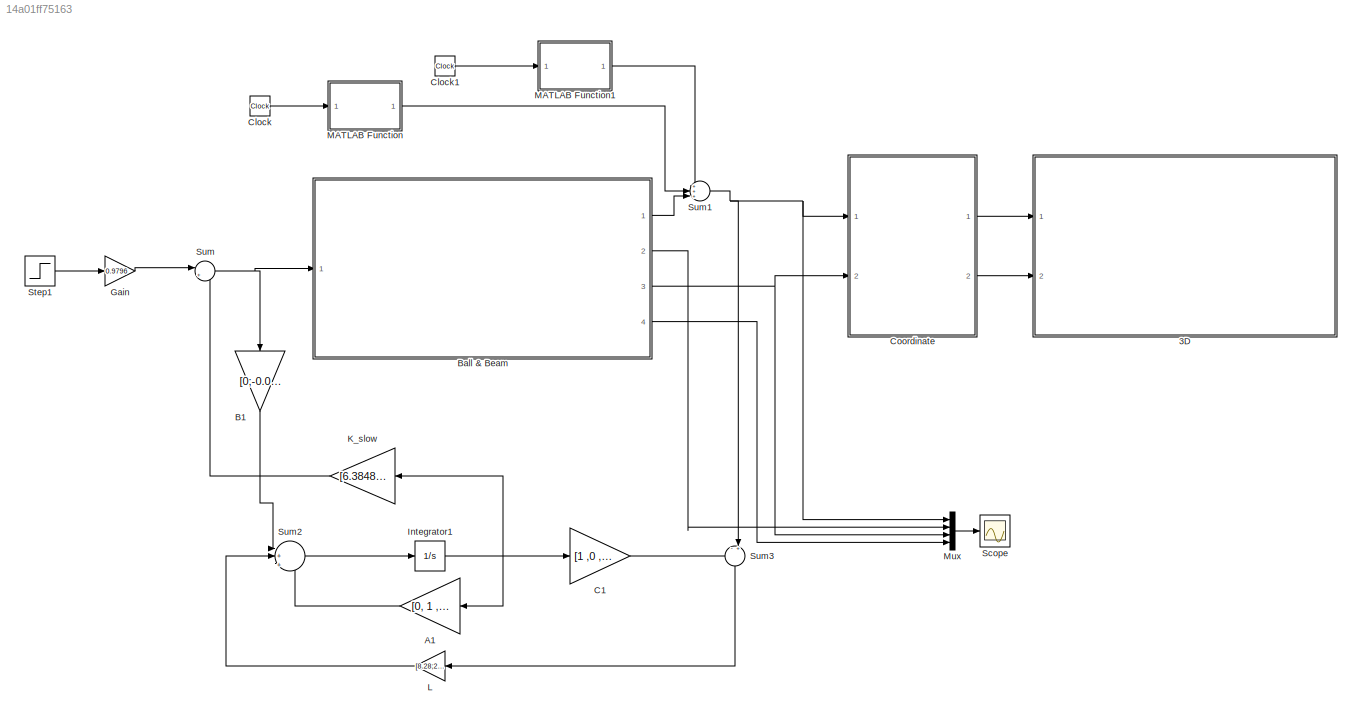
MODEL slx_14a01ff75163
KIND model
CONFIG AbsTol = auto
CONFIG EnableMultiTasking = off
CONFIG FixedStep = auto
CONFIG MaxStep = auto
CONFIG MinStep = auto
CONFIG PreLoadFcn = m = 0.27;\nIb = 4.32e-5;\nr = 0.02;\nb = 1;\ng = 9.81;\nIw = 1.5 * 9.35e-2;\nK = 0.001;\nl = 0.49;
CONFIG RelTol = 1e-3
CONFIG SampleTimeConstraint = Unconstrained
CONFIG Solver = VariableStepAuto
CONFIG SolverName = VariableStepAuto
CONFIG StartTime = 0.0
CONFIG StopTime = 50
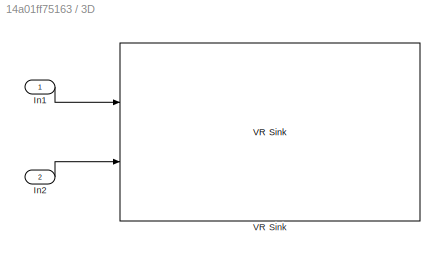
BLOCK [SubSystem] 3D
  Permissions = NoReadOrWrite
  Ports = [2]
  RequestExecContextInheritance = off
BLOCK [Inport] 3D/In1
  IconDisplay = Port number
BLOCK [Inport] 3D/In2
  IconDisplay = Port number
  Port = 2
BLOCK [Reference] 3D/VR Sink  REF=vrlib/VR Sink
  InstantiateOnLoad = on
  Ports = [2]
  SourceBlock = vrlib/VR Sink
  SourceProductBaseCode = SL
  SourceProductName = Simulink
  SourceType = Virtual Reality Sink
BLOCK [Gain] A1
  Gain = [0, 1 ,0, 0 ;-0.378 ,0 ,7.0147 ,0.0343;0, 0, 0, 1; 18.9001 ,0, -0.3797, -1.7133]
  Multiplication = Matrix(K*u) (u vector)
  OutDataTypeStr = Inherit: Inherit via internal rule
  ParamDataTypeStr = Inherit: Inherit via internal rule
  SaturateOnIntegerOverflow = off
BLOCK [Gain] B1
  Gain = [0;-0.0699;0;3.4965]
  Multiplication = Matrix(K*u) (u vector)
  OutDataTypeStr = Inherit: Inherit via internal rule
  ParamDataTypeStr = Inherit: Inherit via internal rule
  SaturateOnIntegerOverflow = off
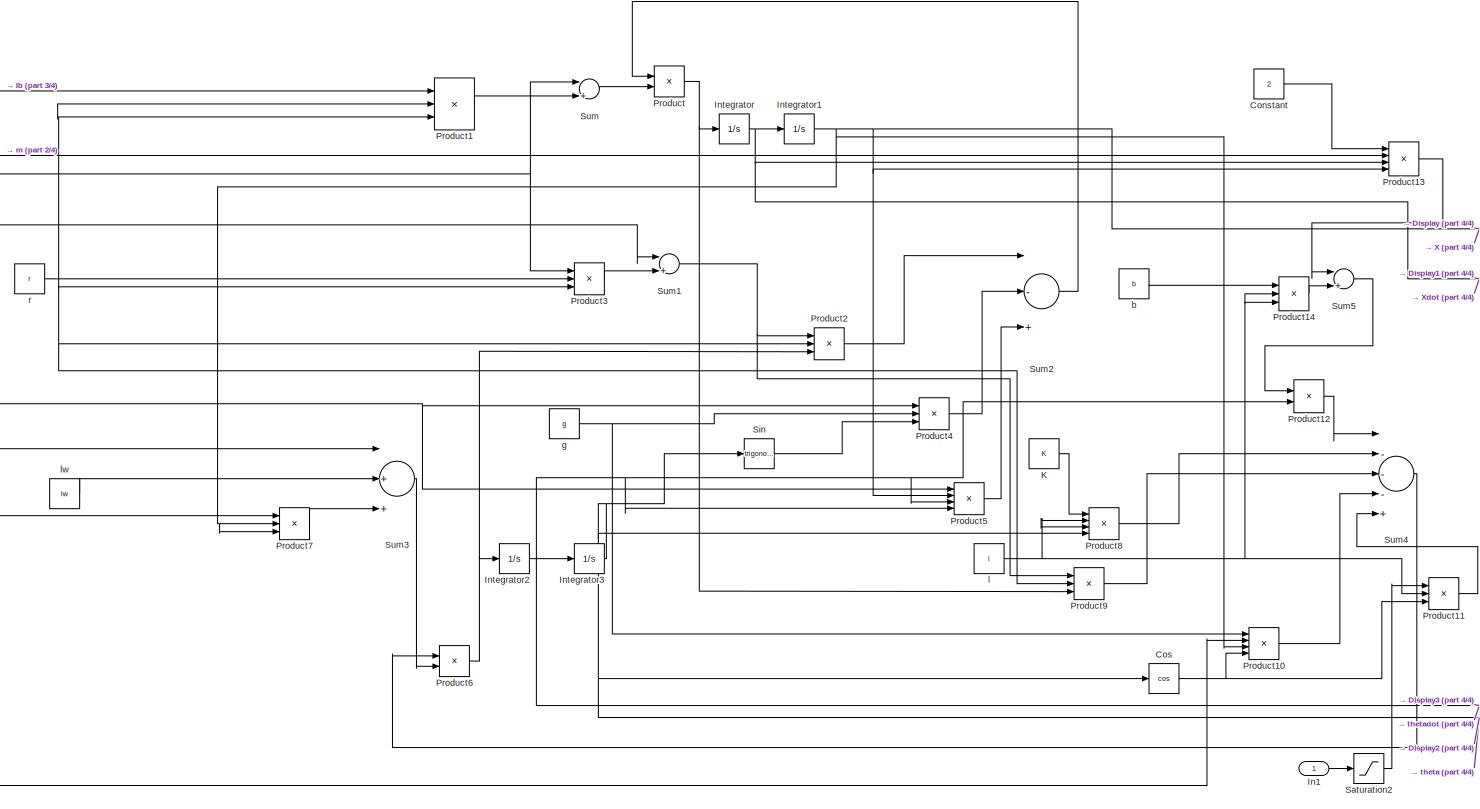
[diagram: Ball & Beam - part 1/4, most of the canvas]
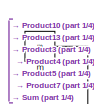
[diagram: Ball & Beam - part 2/4, top left region]
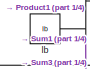
[diagram: Ball & Beam - part 3/4, top left region]
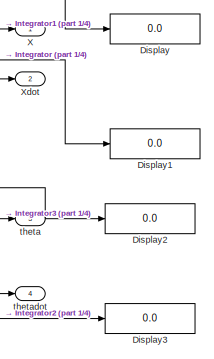
[diagram: Ball & Beam - part 4/4, middle right region]
BLOCK [SubSystem] Ball & Beam
  Permissions = NoReadOrWrite
  Ports = [1, 4]
  RequestExecContextInheritance = off
BLOCK [Constant] Ball & Beam/Constant
  Value = 2
BLOCK [Trigonometry] Ball & Beam/Cos
  Operator = cos
  Ports = [1, 1]
BLOCK [Display] Ball & Beam/Display
  Decimation = 1
  Ports = [1]
BLOCK [Display] Ball & Beam/Display1
  Decimation = 1
  Ports = [1]
BLOCK [Display] Ball & Beam/Display2
  Decimation = 1
  Ports = [1]
BLOCK [Display] Ball & Beam/Display3
  Decimation = 1
  Ports = [1]
BLOCK [Inport] Ball & Beam/In1
  IconDisplay = Port number
BLOCK [Integrator] Ball & Beam/Integrator
  Ports = [1, 1]
BLOCK [Integrator] Ball & Beam/Integrator1
  Ports = [1, 1]
BLOCK [Integrator] Ball & Beam/Integrator2
  Ports = [1, 1]
BLOCK [Integrator] Ball & Beam/Integrator3
  Ports = [1, 1]
BLOCK [Constant] Ball & Beam/K
  Value = K
BLOCK [Product] Ball & Beam/Product
  InputSameDT = off
  Inputs = */
  OutDataTypeStr = Inherit: Inherit via internal rule
  Ports = [2, 1]
  RndMeth = Floor
  SaturateOnIntegerOverflow = off
BLOCK [Product] Ball & Beam/Product1
  InputSameDT = off
  Inputs = *//
  OutDataTypeStr = Inherit: Inherit via internal rule
  Ports = [3, 1]
  RndMeth = Floor
  SaturateOnIntegerOverflow = off
BLOCK [Product] Ball & Beam/Product10
  InputSameDT = off
  Inputs = ****
  OutDataTypeStr = Inherit: Inherit via internal rule
  Ports = [4, 1]
  RndMeth = Floor
  SaturateOnIntegerOverflow = off
BLOCK [Product] Ball & Beam/Product11
  InputSameDT = off
  Inputs = ***
  OutDataTypeStr = Inherit: Inherit via internal rule
  Ports = [3, 1]
  RndMeth = Floor
  SaturateOnIntegerOverflow = off
BLOCK [Product] Ball & Beam/Product12
  InputSameDT = off
  Inputs = **
  OutDataTypeStr = Inherit: Inherit via internal rule
  Ports = [2, 1]
  RndMeth = Floor
  SaturateOnIntegerOverflow = off
BLOCK [Product] Ball & Beam/Product13
  InputSameDT = off
  Inputs = ****
  OutDataTypeStr = Inherit: Inherit via internal rule
  Ports = [4, 1]
  RndMeth = Floor
  SaturateOnIntegerOverflow = off
BLOCK [Product] Ball & Beam/Product14
  InputSameDT = off
  Inputs = ***
  OutDataTypeStr = Inherit: Inherit via internal rule
  Ports = [3, 1]
  RndMeth = Floor
  SaturateOnIntegerOverflow = off
BLOCK [Product] Ball & Beam/Product2
  InputSameDT = off
  Inputs = */*
  OutDataTypeStr = Inherit: Inherit via internal rule
  Ports = [3, 1]
  RndMeth = Floor
  SaturateOnIntegerOverflow = off
BLOCK [Product] Ball & Beam/Product3
  InputSameDT = off
  Inputs = ***
  OutDataTypeStr = Inherit: Inherit via internal rule
  Ports = [3, 1]
  RndMeth = Floor
  SaturateOnIntegerOverflow = off
BLOCK [Product] Ball & Beam/Product4
  InputSameDT = off
  Inputs = ***
  OutDataTypeStr = Inherit: Inherit via internal rule
  Ports = [3, 1]
  RndMeth = Floor
  SaturateOnIntegerOverflow = off
BLOCK [Product] Ball & Beam/Product5
  InputSameDT = off
  Inputs = ****
  OutDataTypeStr = Inherit: Inherit via internal rule
  Ports = [4, 1]
  RndMeth = Floor
  SaturateOnIntegerOverflow = off
BLOCK [Product] Ball & Beam/Product6
  InputSameDT = off
  Inputs = */
  OutDataTypeStr = Inherit: Inherit via internal rule
  Ports = [2, 1]
  RndMeth = Floor
  SaturateOnIntegerOverflow = off
BLOCK [Product] Ball & Beam/Product7
  InputSameDT = off
  Inputs = ***
  OutDataTypeStr = Inherit: Inherit via internal rule
  Ports = [3, 1]
  RndMeth = Floor
  SaturateOnIntegerOverflow = off
BLOCK [Product] Ball & Beam/Product8
  InputSameDT = off
  Inputs = ****
  OutDataTypeStr = Inherit: Inherit via internal rule
  Ports = [4, 1]
  RndMeth = Floor
  SaturateOnIntegerOverflow = off
BLOCK [Product] Ball & Beam/Product9
  InputSameDT = off
  Inputs = */*
  OutDataTypeStr = Inherit: Inherit via internal rule
  Ports = [3, 1]
  RndMeth = Floor
  SaturateOnIntegerOverflow = off
BLOCK [Saturate] Ball & Beam/Saturation2
  InputPortMap = u0
  LowerLimit = -5
  Ports = [1, 1]
  UpperLimit = 5
BLOCK [Trigonometry] Ball & Beam/Sin
  Ports = [1, 1]
BLOCK [Sum] Ball & Beam/Sum
  InputSameDT = off
  Inputs = |++
  OutDataTypeStr = Inherit: Inherit via internal rule
  Ports = [2, 1]
  SaturateOnIntegerOverflow = off
BLOCK [Sum] Ball & Beam/Sum1
  InputSameDT = off
  Inputs = |++
  OutDataTypeStr = Inherit: Inherit via internal rule
  Ports = [2, 1]
  SaturateOnIntegerOverflow = off
BLOCK [Sum] Ball & Beam/Sum2
  InputSameDT = off
  Inputs = |-++
  OutDataTypeStr = Inherit: Inherit via internal rule
  Ports = [3, 1]
  SaturateOnIntegerOverflow = off
BLOCK [Sum] Ball & Beam/Sum3
  InputSameDT = off
  Inputs = |+++
  OutDataTypeStr = Inherit: Inherit via internal rule
  Ports = [3, 1]
  SaturateOnIntegerOverflow = off
BLOCK [Sum] Ball & Beam/Sum4
  InputSameDT = off
  Inputs = |---++
  OutDataTypeStr = Inherit: Inherit via internal rule
  Ports = [5, 1]
  SaturateOnIntegerOverflow = off
BLOCK [Sum] Ball & Beam/Sum5
  InputSameDT = off
  Inputs = |++
  OutDataTypeStr = Inherit: Inherit via internal rule
  Ports = [2, 1]
  SaturateOnIntegerOverflow = off
BLOCK [Outport] Ball & Beam/X
  IconDisplay = Port number
  VectorParamsAs1DForOutWhenUnconnected = on
BLOCK [Outport] Ball & Beam/Xdot
  IconDisplay = Port number
  Port = 2
  VectorParamsAs1DForOutWhenUnconnected = on
BLOCK [Constant] Ball & Beam/b
  Value = b
BLOCK [Constant] Ball & Beam/g
  Value = g
BLOCK [Constant] Ball & Beam/l
  Value = l
BLOCK [Constant] Ball & Beam/lb
  Value = Ib
BLOCK [Constant] Ball & Beam/lw
  Value = Iw
BLOCK [Constant] Ball & Beam/m
  Value = m
BLOCK [Constant] Ball & Beam/r
  Value = r
BLOCK [Outport] Ball & Beam/theta
  IconDisplay = Port number
  Port = 3
  VectorParamsAs1DForOutWhenUnconnected = on
BLOCK [Outport] Ball & Beam/thetadot
  IconDisplay = Port number
  Port = 4
  VectorParamsAs1DForOutWhenUnconnected = on
BLOCK [Gain] C1
  Gain = [1 ,0 ,0 ,0]
  Multiplication = Matrix(K*u) (u vector)
  OutDataTypeStr = Inherit: Inherit via internal rule
  ParamDataTypeStr = Inherit: Inherit via internal rule
  SaturateOnIntegerOverflow = off
BLOCK [Clock] Clock
BLOCK [Clock] Clock1
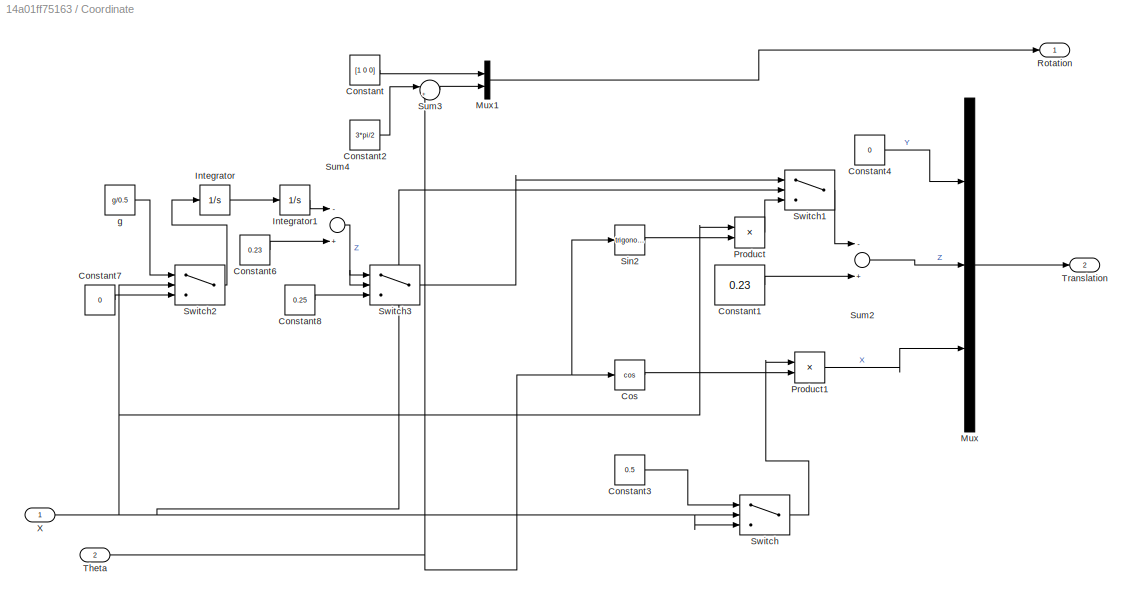
BLOCK [SubSystem] Coordinate
  Permissions = NoReadOrWrite
  Ports = [2, 2]
  RequestExecContextInheritance = off
BLOCK [Constant] Coordinate/Constant
  Value = [1 0 0]
BLOCK [Constant] Coordinate/Constant1
  Value = 0.23
BLOCK [Constant] Coordinate/Constant2
  Value = 3*pi/2
BLOCK [Constant] Coordinate/Constant3
  Value = 0.5
BLOCK [Constant] Coordinate/Constant4
  Value = 0
BLOCK [Constant] Coordinate/Constant6
  Value = 0.23
BLOCK [Constant] Coordinate/Constant7
  Value = 0
BLOCK [Constant] Coordinate/Constant8
  Value = 0.25
BLOCK [Trigonometry] Coordinate/Cos
  Operator = cos
  Ports = [1, 1]
BLOCK [Integrator] Coordinate/Integrator
  Ports = [1, 1]
BLOCK [Integrator] Coordinate/Integrator1
  Ports = [1, 1]
BLOCK [Mux] Coordinate/Mux
  DisplayOption = bar
  Inputs = 3
  Ports = [3, 1]
BLOCK [Mux] Coordinate/Mux1
  DisplayOption = bar
  Inputs = 2
  Ports = [2, 1]
BLOCK [Product] Coordinate/Product
  InputSameDT = off
  OutDataTypeStr = Inherit: Inherit via internal rule
  Ports = [2, 1]
  RndMeth = Floor
  SaturateOnIntegerOverflow = off
BLOCK [Product] Coordinate/Product1
  InputSameDT = off
  OutDataTypeStr = Inherit: Inherit via internal rule
  Ports = [2, 1]
  RndMeth = Floor
  SaturateOnIntegerOverflow = off
BLOCK [Outport] Coordinate/Rotation
  IconDisplay = Port number
  VectorParamsAs1DForOutWhenUnconnected = on
BLOCK [Trigonometry] Coordinate/Sin2
  Ports = [1, 1]
BLOCK [Sum] Coordinate/Sum2
  InputSameDT = off
  Inputs = -+
  OutDataTypeStr = Inherit: Inherit via internal rule
  Ports = [2, 1]
  SaturateOnIntegerOverflow = off
BLOCK [Sum] Coordinate/Sum3
  IconShape = round
  InputSameDT = off
  Inputs = |++
  OutDataTypeStr = Inherit: Inherit via internal rule
  Ports = [2, 1]
  SaturateOnIntegerOverflow = off
BLOCK [Sum] Coordinate/Sum4
  InputSameDT = off
  Inputs = -+
  OutDataTypeStr = Inherit: Inherit via internal rule
  Ports = [2, 1]
  SaturateOnIntegerOverflow = off
BLOCK [Switch] Coordinate/Switch
  Criteria = u2 > Threshold
  InputSameDT = off
  SaturateOnIntegerOverflow = off
  Threshold = 0.5
BLOCK [Switch] Coordinate/Switch1
  Criteria = u2 > Threshold
  InputSameDT = off
  SaturateOnIntegerOverflow = off
  Threshold = 0.5
BLOCK [Switch] Coordinate/Switch2
  Criteria = u2 > Threshold
  InputSameDT = off
  SaturateOnIntegerOverflow = off
  Threshold = 0.5
BLOCK [Switch] Coordinate/Switch3
  Criteria = u2 > Threshold
  InputSameDT = off
  SaturateOnIntegerOverflow = off
  Threshold = 0.02
BLOCK [Inport] Coordinate/Theta
  IconDisplay = Port number
  Port = 2
BLOCK [Outport] Coordinate/Translation
  IconDisplay = Port number
  Port = 2
  VectorParamsAs1DForOutWhenUnconnected = on
BLOCK [Inport] Coordinate/X
  IconDisplay = Port number
BLOCK [Constant] Coordinate/g
  Value = g/0.5
BLOCK [Gain] Gain
  Gain = 0.9796
  OutDataTypeStr = Inherit: Inherit via internal rule
  ParamDataTypeStr = Inherit: Inherit via internal rule
  SaturateOnIntegerOverflow = off
BLOCK [Integrator] Integrator1
  Ports = [1, 1]
BLOCK [Gain] K_slow
  Gain = [6.3848, 2.0407, 9.9208, 2.4108]
  Multiplication = Matrix(K*u) (u vector)
  OutDataTypeStr = Inherit: Inherit via internal rule
  ParamDataTypeStr = Inherit: Inherit via internal rule
  SaturateOnIntegerOverflow = off
BLOCK [Gain] L
  Gain = [8.28;20.0447;1.69;18.31]
  OutDataTypeStr = Inherit: Inherit via internal rule
  ParamDataTypeStr = Inherit: Inherit via internal rule
  SaturateOnIntegerOverflow = off
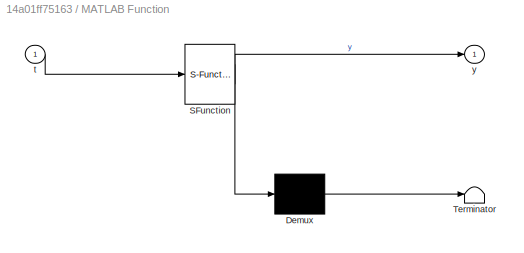
BLOCK [SubSystem] MATLAB Function
  ErrorFcn = Stateflow.Translate.translate
  PermitHierarchicalResolution = ExplicitOnly
  Ports = [1, 1]
  RequestExecContextInheritance = off
  SFBlockType = MATLAB Function
  TreatAsAtomicUnit = on
BLOCK [Demux] MATLAB Function/ Demux 
  Outputs = 1
  Ports = [1, 1]
BLOCK [S-Function] MATLAB Function/ SFunction 
  EnableBusSupport = on
  FunctionName = sf_sfun
  PortCounts = [1 2]
  Ports = [1, 2]
  SFcnIsStateOwnerBlock = off
  SFunctionDeploymentMode = off
  Tag = Stateflow S-Function ballandbeam 2
BLOCK [Terminator] MATLAB Function/ Terminator 
BLOCK [Inport] MATLAB Function/t
  IconDisplay = Port number
BLOCK [Outport] MATLAB Function/y
  IconDisplay = Port number
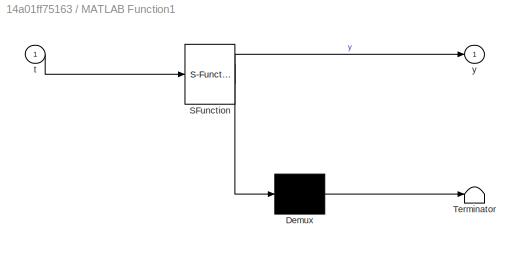
BLOCK [SubSystem] MATLAB Function1
  ErrorFcn = Stateflow.Translate.translate
  PermitHierarchicalResolution = ExplicitOnly
  Ports = [1, 1]
  RequestExecContextInheritance = off
  SFBlockType = MATLAB Function
  TreatAsAtomicUnit = on
BLOCK [Demux] MATLAB Function1/ Demux 
  Outputs = 1
  Ports = [1, 1]
BLOCK [S-Function] MATLAB Function1/ SFunction 
  EnableBusSupport = on
  FunctionName = sf_sfun
  PortCounts = [1 2]
  Ports = [1, 2]
  SFcnIsStateOwnerBlock = off
  SFunctionDeploymentMode = off
  Tag = Stateflow S-Function ballandbeam 1
BLOCK [Terminator] MATLAB Function1/ Terminator 
BLOCK [Inport] MATLAB Function1/t
  IconDisplay = Port number
BLOCK [Outport] MATLAB Function1/y
  IconDisplay = Port number
BLOCK [Mux] Mux
  DisplayOption = bar
  Ports = [4, 1]
BLOCK [Scope] Scope
  Floating = off
  NumInputPorts = 1
  Ports = [1]
  ScopeSpecificationString = Simulink.scopes.TimeScopeBlockCfg('CurrentConfiguration', extmgr.ConfigurationSet(extmgr.Configuration('Core','General UI',true),extmgr.Configuration('Core','Source UI',true),extmgr.Configuration('Sources','WiredSimulink',true),extmgr.Configuration('Visuals','Time Domain',true,'SerializedDisplays',{struct('MinYLimReal','-0.44364','MaxYLimReal','0.60762','YLabelReal','','MinYLimMag','0.00000','MaxY...<+1405ch>
BLOCK [Step] Step1
  After = 0.1
  SampleTime = 0
  Time = 0
BLOCK [Sum] Sum
  IconShape = round
  InputSameDT = off
  Inputs = |+-
  OutDataTypeStr = Inherit: Inherit via internal rule
  Ports = [2, 1]
  SaturateOnIntegerOverflow = off
BLOCK [Sum] Sum1
  IconShape = round
  InputSameDT = off
  Inputs = +++|
  OutDataTypeStr = Inherit: Inherit via internal rule
  Ports = [3, 1]
  SaturateOnIntegerOverflow = off
BLOCK [Sum] Sum2
  IconShape = round
  InputSameDT = off
  Inputs = |+|+|+
  OutDataTypeStr = Inherit: Inherit via internal rule
  Ports = [3, 1]
  SaturateOnIntegerOverflow = off
BLOCK [Sum] Sum3
  IconShape = round
  InputSameDT = off
  Inputs = -+|
  OutDataTypeStr = Inherit: Inherit via internal rule
  Ports = [2, 1]
  SaturateOnIntegerOverflow = off
LINE 3D/In1:1 -> 3D/VR Sink:1
LINE 3D/In2:1 -> 3D/VR Sink:2
LINE A1:1 -> Sum2:3
LINE B1:1 -> Sum2:1
LINE Ball & Beam/Constant:1 -> Ball & Beam/Product13:1
NET Ball & Beam/Cos:1 -> Ball & Beam/Product10:4, Ball & Beam/Product11:3
LINE Ball & Beam/In1:1 -> Ball & Beam/Saturation2:1
NET Ball & Beam/Integrator1:1 -> Ball & Beam/Display:1, Ball & Beam/Product10:3, Ball & Beam/Product13:4, Ball & Beam/Product5:2, Ball & Beam/Product7:2, Ball & Beam/Product7:3, Ball & Beam/X:1
NET Ball & Beam/Integrator2:1 -> Ball & Beam/Display3:1, Ball & Beam/Integrator3:1, Ball & Beam/Product12:2, Ball & Beam/Product5:3, Ball & Beam/Product5:4, Ball & Beam/thetadot:1
NET Ball & Beam/Integrator3:1 -> Ball & Beam/Cos:1, Ball & Beam/Display2:1, Ball & Beam/Product8:4, Ball & Beam/Sin:1, Ball & Beam/theta:1
NET Ball & Beam/Integrator:1 -> Ball & Beam/Display1:1, Ball & Beam/Integrator1:1, Ball & Beam/Product13:3, Ball & Beam/Xdot:1
LINE Ball & Beam/K:1 -> Ball & Beam/Product8:1
LINE Ball & Beam/Product10:1 -> Ball & Beam/Sum4:4
LINE Ball & Beam/Product11:1 -> Ball & Beam/Sum4:5
LINE Ball & Beam/Product12:1 -> Ball & Beam/Sum4:1
LINE Ball & Beam/Product13:1 -> Ball & Beam/Sum5:1
LINE Ball & Beam/Product14:1 -> Ball & Beam/Sum5:2
LINE Ball & Beam/Product1:1 -> Ball & Beam/Sum:2
LINE Ball & Beam/Product2:1 -> Ball & Beam/Sum2:1
LINE Ball & Beam/Product3:1 -> Ball & Beam/Sum1:2
LINE Ball & Beam/Product4:1 -> Ball & Beam/Sum2:2
LINE Ball & Beam/Product5:1 -> Ball & Beam/Sum2:3
NET Ball & Beam/Product6:1 -> Ball & Beam/Integrator2:1, Ball & Beam/Product2:3
LINE Ball & Beam/Product7:1 -> Ball & Beam/Sum3:3
LINE Ball & Beam/Product8:1 -> Ball & Beam/Sum4:2
LINE Ball & Beam/Product9:1 -> Ball & Beam/Sum4:3
NET Ball & Beam/Product:1 -> Ball & Beam/Integrator:1, Ball & Beam/Product9:3
LINE Ball & Beam/Saturation2:1 -> Ball & Beam/Product11:1
LINE Ball & Beam/Sin:1 -> Ball & Beam/Product4:3
NET Ball & Beam/Sum1:1 -> Ball & Beam/Product2:1, Ball & Beam/Product9:1
LINE Ball & Beam/Sum2:1 -> Ball & Beam/Product:1
LINE Ball & Beam/Sum3:1 -> Ball & Beam/Product6:2
LINE Ball & Beam/Sum4:1 -> Ball & Beam/Product6:1
LINE Ball & Beam/Sum5:1 -> Ball & Beam/Product12:1
LINE Ball & Beam/Sum:1 -> Ball & Beam/Product:2
LINE Ball & Beam/b:1 -> Ball & Beam/Product14:1
NET Ball & Beam/g:1 -> Ball & Beam/Product10:1, Ball & Beam/Product4:2
NET Ball & Beam/l:1 -> Ball & Beam/Product11:2, Ball & Beam/Product14:2, Ball & Beam/Product14:3, Ball & Beam/Product8:2, Ball & Beam/Product8:3
NET Ball & Beam/lb:1 -> Ball & Beam/Product1:1, Ball & Beam/Sum1:1, Ball & Beam/Sum3:1
LINE Ball & Beam/lw:1 -> Ball & Beam/Sum3:2
NET Ball & Beam/m:1 -> Ball & Beam/Product10:2, Ball & Beam/Product13:2, Ball & Beam/Product3:1, Ball & Beam/Product4:1, Ball & Beam/Product5:1, Ball & Beam/Product7:1, Ball & Beam/Sum:1
NET Ball & Beam/r:1 -> Ball & Beam/Product1:2, Ball & Beam/Product1:3, Ball & Beam/Product2:2, Ball & Beam/Product3:2, Ball & Beam/Product3:3, Ball & Beam/Product9:2
LINE Ball & Beam:1 -> Sum1:3
LINE Ball & Beam:2 -> Mux:2
NET Ball & Beam:3 -> Coordinate:2, Mux:3
LINE Ball & Beam:4 -> Mux:4
LINE C1:1 -> Sum3:1
LINE Clock1:1 -> MATLAB Function1:1
LINE Clock:1 -> MATLAB Function:1
LINE Coordinate/Constant1:1 -> Coordinate/Sum2:2
LINE Coordinate/Constant2:1 -> Coordinate/Sum3:1
LINE Coordinate/Constant3:1 -> Coordinate/Switch:1
LINE Coordinate/Constant4:1 -> Coordinate/Mux:1
LINE Coordinate/Constant6:1 -> Coordinate/Sum4:2
LINE Coordinate/Constant7:1 -> Coordinate/Switch2:3
LINE Coordinate/Constant8:1 -> Coordinate/Switch3:3
LINE Coordinate/Constant:1 -> Coordinate/Mux1:1
LINE Coordinate/Cos:1 -> Coordinate/Product1:2
LINE Coordinate/Integrator1:1 -> Coordinate/Sum4:1
LINE Coordinate/Integrator:1 -> Coordinate/Integrator1:1
LINE Coordinate/Mux1:1 -> Coordinate/Rotation:1
LINE Coordinate/Mux:1 -> Coordinate/Translation:1
LINE Coordinate/Product1:1 -> Coordinate/Mux:3
LINE Coordinate/Product:1 -> Coordinate/Switch1:3
LINE Coordinate/Sin2:1 -> Coordinate/Product:2
LINE Coordinate/Sum2:1 -> Coordinate/Mux:2
LINE Coordinate/Sum3:1 -> Coordinate/Mux1:2
NET Coordinate/Sum4:1 -> Coordinate/Switch3:1, Coordinate/Switch3:2
LINE Coordinate/Switch1:1 -> Coordinate/Sum2:1
LINE Coordinate/Switch2:1 -> Coordinate/Integrator:1
LINE Coordinate/Switch3:1 -> Coordinate/Switch1:1
LINE Coordinate/Switch:1 -> Coordinate/Product1:1
NET Coordinate/Theta:1 -> Coordinate/Cos:1, Coordinate/Sin2:1, Coordinate/Sum3:2
NET Coordinate/X:1 -> Coordinate/Product:1, Coordinate/Switch1:2, Coordinate/Switch2:2, Coordinate/Switch:2, Coordinate/Switch:3
LINE Coordinate/g:1 -> Coordinate/Switch2:1
LINE Coordinate:1 -> 3D:1
LINE Coordinate:2 -> 3D:2
LINE Gain:1 -> Sum:1
NET Integrator1:1 -> A1:1, C1:1, K_slow:1
LINE K_slow:1 -> Sum:2
LINE L:1 -> Sum2:2
LINE MATLAB Function1:1 -> Sum1:1
LINE MATLAB Function:1 -> Sum1:2
LINE Mux:1 -> Scope:1
LINE Step1:1 -> Gain:1
NET Sum1:1 -> Coordinate:1, Mux:1, Sum3:2
LINE Sum2:1 -> Integrator1:1
LINE Sum3:1 -> L:1
NET Sum:1 -> B1:1, Ball & Beam:1
note: NET lines group one-source signal fan-out (src -> all destinations, sorted); 1:1 wires keep LINE
CHART MATLAB Function1 states=1 transitions=1
  STATE_LABEL 'eML_blk_kernel()'
  STATE_LABEL 'SCRIPT:\nfunction y = fcn(t)\ny = 0;\nif(t<10)\n    y = 0;\nelseif(15<t && t<15.05)\n    y=-0.1;\nelse\n    y=0;\nend\nend'
CHART MATLAB Function states=1 transitions=1
  STATE_LABEL 'eML_blk_kernel()'
  STATE_LABEL 'SCRIPT:\nfunction y = fcn(t)\ny = 0;\nif(t<10)\n    y = 0;\nelseif(10<t && t<10.05)\n    y=0.1;\nelse\n    y=0;\nend\nend'
